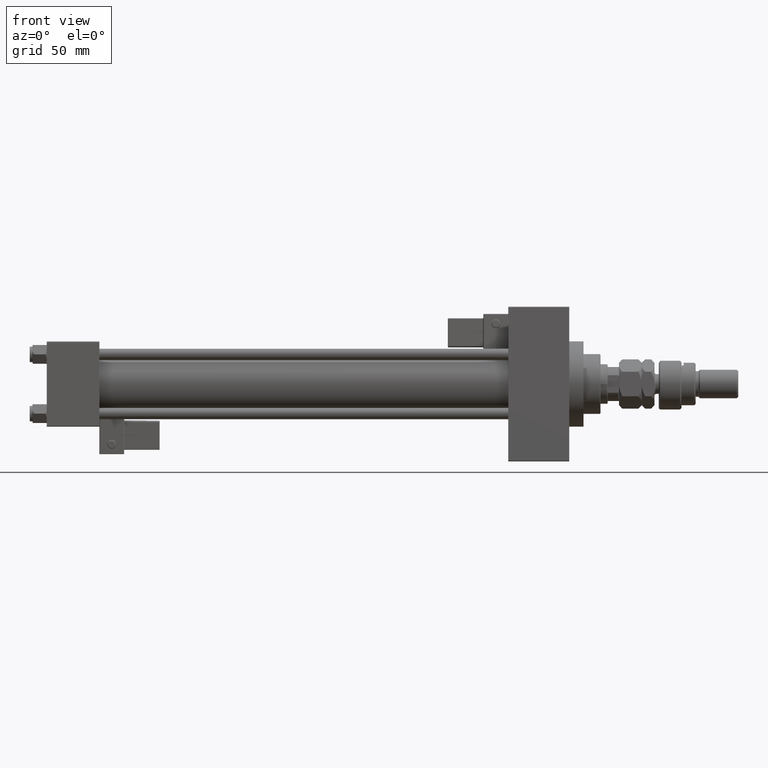
[diagram: clean part render]
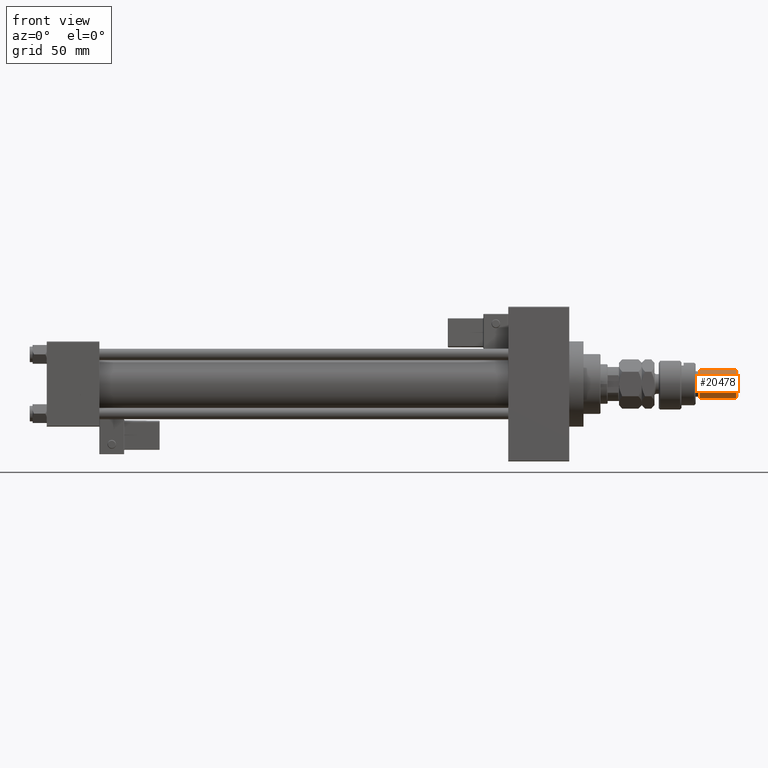
[diagram: same view with one face highlighted and labeled with its STEP entity id]
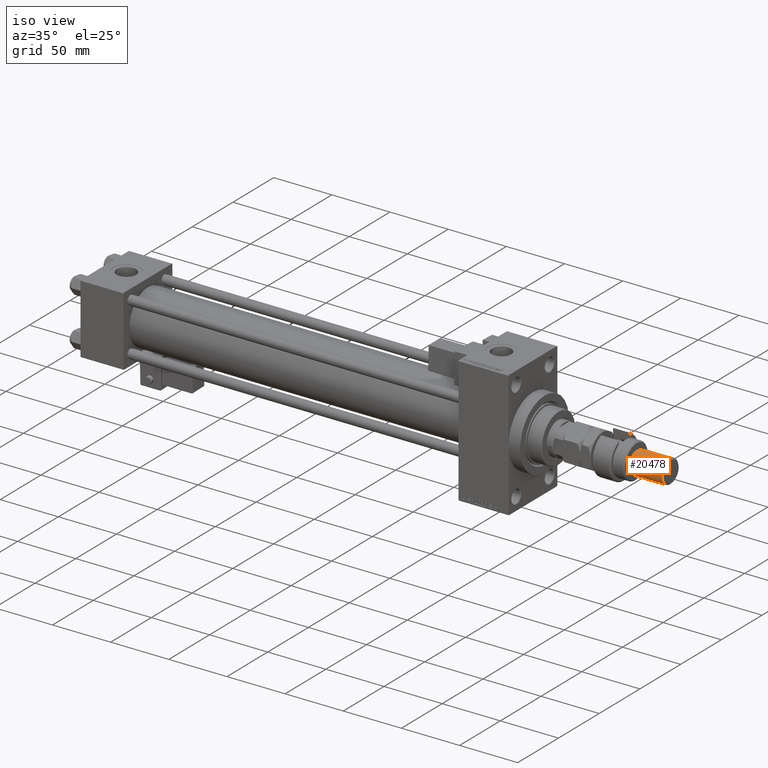
[diagram: same view with one face highlighted and labeled with its STEP entity id]
A machine part, front view. The second image highlights one B-rep face of the part: STEP entity #20478.
A second angle (iso view) of the same face is appended — the face is thin or edge-on in the first view.
In plain terms, the highlighted cylindrical surface (edge-blend (fillet) strip) has radius 10 mm, axis along (-1, -0, 0).
Its self-contained STEP definition (entity closure, byte-faithful):
#1620 = ORIENTED_EDGE ( 'NONE', *, *, #3418, .T. ) ;
#3418 = EDGE_CURVE ( 'NONE', #54610, #26523, #12954, .T. ) ;
#4951 = CARTESIAN_POINT ( 'NONE',  ( 10.00000000000000000, 1.224646799147353256E-15, 29.00000000000000711 ) ) ;
#6455 = DIRECTION ( 'NONE',  ( -0.000000000000000000, -0.000000000000000000, -1.000000000000000000 ) ) ;
#8626 = VERTEX_POINT ( 'NONE', #4951 ) ;
#8926 = DIRECTION ( 'NONE',  ( 0.000000000000000000, 0.000000000000000000, -1.000000000000000000 ) ) ;
#10806 = VECTOR ( 'NONE', #45553, 1000.000000000000000 ) ;
#12166 = CARTESIAN_POINT ( 'NONE',  ( -10.00000000000000000, 0.000000000000000000, 56.00000000000000711 ) ) ;
#12354 = CARTESIAN_POINT ( 'NONE',  ( -10.00000000000000000, 0.000000000000000000, 54.99999999999998579 ) ) ;
#12726 = EDGE_CURVE ( 'NONE', #53374, #8626, #45676, .T. ) ;
#12954 = CIRCLE ( 'NONE', #27968, 10.00000000000000000 ) ;
#19157 = DIRECTION ( 'NONE',  ( -1.000000000000000000, 0.000000000000000000, 0.000000000000000000 ) ) ;
#19346 = DIRECTION ( 'NONE',  ( 1.000000000000000000, 0.000000000000000000, 0.000000000000000000 ) ) ;
#19614 = CARTESIAN_POINT ( 'NONE',  ( 0.000000000000000000, 0.000000000000000000, 29.00000000000000711 ) ) ;
#20196 = EDGE_LOOP ( 'NONE', ( #40448, #1620, #49269, #46958 ) ) ;
#20478 = ADVANCED_FACE ( 'NONE', ( #35751 ), #52586, .T. ) ;
#21635 = CARTESIAN_POINT ( 'NONE',  ( 0.000000000000000000, 0.000000000000000000, 54.99999999999998579 ) ) ;
#23313 = CARTESIAN_POINT ( 'NONE',  ( 0.000000000000000000, 0.000000000000000000, 56.00000000000000711 ) ) ;
#25366 = EDGE_CURVE ( 'NONE', #54610, #8626, #32857, .T. ) ;
#26523 = VERTEX_POINT ( 'NONE', #12354 ) ;
#27968 = AXIS2_PLACEMENT_3D ( 'NONE', #21635, #8926, #38489 ) ;
#29012 = DIRECTION ( 'NONE',  ( -0.000000000000000000, -0.000000000000000000, -1.000000000000000000 ) ) ;
#29846 = LINE ( 'NONE', #12166, #50407 ) ;
#30536 = CARTESIAN_POINT ( 'NONE',  ( -10.00000000000000000, 0.000000000000000000, 29.00000000000000711 ) ) ;
#32857 = LINE ( 'NONE', #53300, #10806 ) ;
#35751 = FACE_OUTER_BOUND ( 'NONE', #20196, .T. ) ;
#38489 = DIRECTION ( 'NONE',  ( 1.000000000000000000, 0.000000000000000000, 0.000000000000000000 ) ) ;
#40448 = ORIENTED_EDGE ( 'NONE', *, *, #25366, .F. ) ;
#43353 = EDGE_CURVE ( 'NONE', #26523, #53374, #29846, .T. ) ;
#45553 = DIRECTION ( 'NONE',  ( -0.000000000000000000, -0.000000000000000000, -1.000000000000000000 ) ) ;
#45676 = CIRCLE ( 'NONE', #47418, 10.00000000000000000 ) ;
#45683 = CARTESIAN_POINT ( 'NONE',  ( 10.00000000000000000, 1.224646799147353256E-15, 54.99999999999998579 ) ) ;
#46958 = ORIENTED_EDGE ( 'NONE', *, *, #12726, .T. ) ;
#47418 = AXIS2_PLACEMENT_3D ( 'NONE', #19614, #48897, #19346 ) ;
#47641 = AXIS2_PLACEMENT_3D ( 'NONE', #23313, #6455, #19157 ) ;
#48897 = DIRECTION ( 'NONE',  ( -0.000000000000000000, -0.000000000000000000, 1.000000000000000000 ) ) ;
#49269 = ORIENTED_EDGE ( 'NONE', *, *, #43353, .T. ) ;
#50407 = VECTOR ( 'NONE', #29012, 1000.000000000000000 ) ;
#52586 = CYLINDRICAL_SURFACE ( 'NONE', #47641, 10.00000000000000000 ) ;
#53300 = CARTESIAN_POINT ( 'NONE',  ( 10.00000000000000000, 1.224646799147353256E-15, 56.00000000000000711 ) ) ;
#53374 = VERTEX_POINT ( 'NONE', #30536 ) ;
#54610 = VERTEX_POINT ( 'NONE', #45683 ) ;